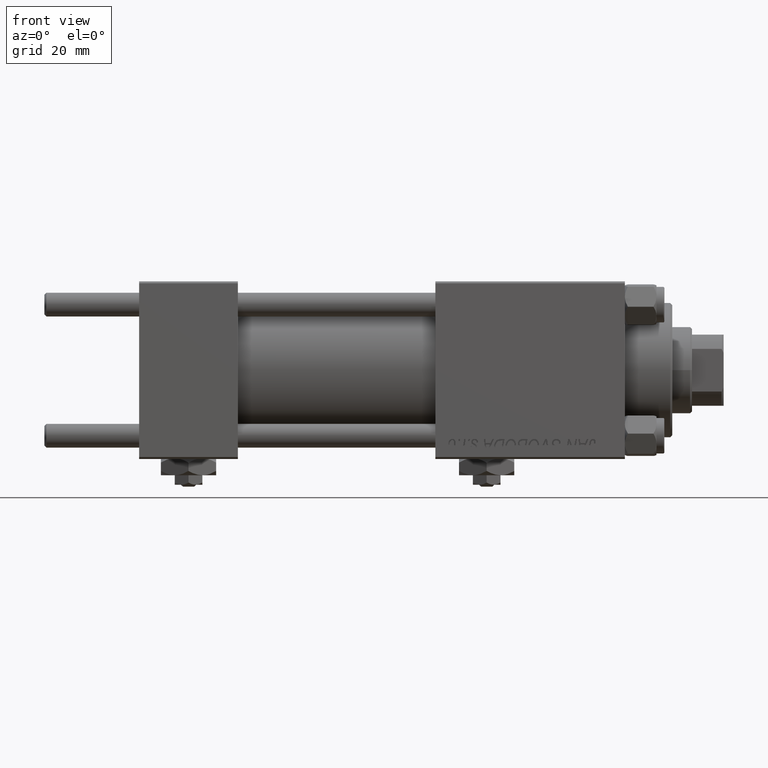
[diagram: clean part render]
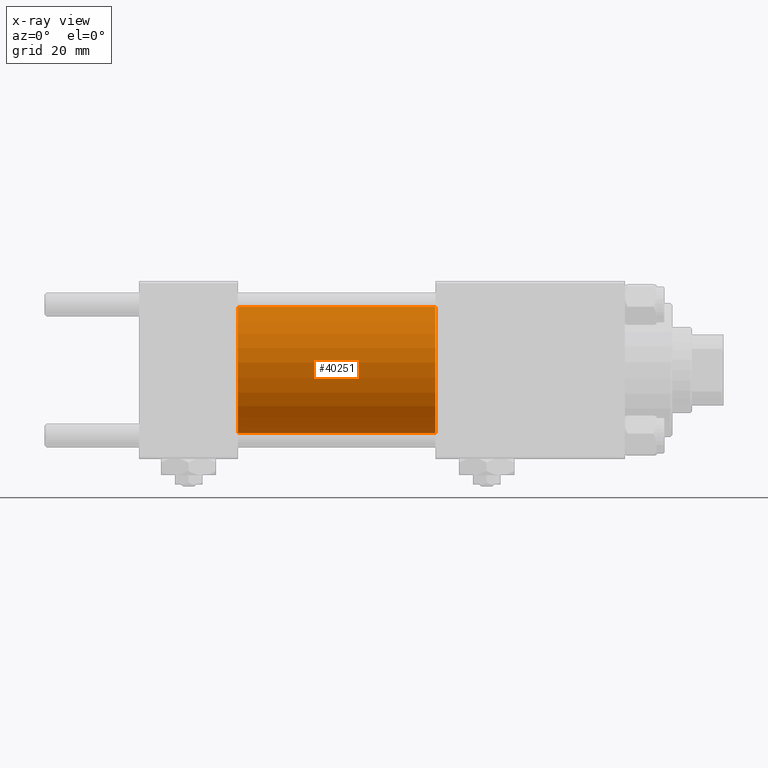
[diagram: x-ray — body ghosted, one internal face saturated and labeled with its STEP entity id]
A machine part, front view, then the same camera in x-ray: the body is ghosted and one INTERNAL B-rep face — a face not visible from any outside direction — is saturated and labeled: STEP entity #40251.
In plain terms, the highlighted cylindrical surface (partial cylindrical patch) has radius 16 mm, axis along (-1, -0, -0).
Its self-contained STEP definition (entity closure, byte-faithful):
#724 = DIRECTION ( 'NONE',  ( -1.000000000000000000, -0.000000000000000000, -0.000000000000000000 ) ) ;
#1792 = CARTESIAN_POINT ( 'NONE',  ( 75.00000000000001421, 1.959434878635765131E-15, -16.00000000000000000 ) ) ;
#5922 = LINE ( 'NONE', #50122, #37141 ) ;
#6794 = DIRECTION ( 'NONE',  ( 1.000000000000000000, 0.000000000000000000, 0.000000000000000000 ) ) ;
#7423 = VERTEX_POINT ( 'NONE', #44077 ) ;
#8442 = AXIS2_PLACEMENT_3D ( 'NONE', #34723, #6794, #14688 ) ;
#9859 = DIRECTION ( 'NONE',  ( -1.000000000000000000, -0.000000000000000000, -0.000000000000000000 ) ) ;
#12149 = EDGE_CURVE ( 'NONE', #7423, #23311, #38300, .T. ) ;
#14688 = DIRECTION ( 'NONE',  ( 0.000000000000000000, 0.000000000000000000, -1.000000000000000000 ) ) ;
#15987 = CARTESIAN_POINT ( 'NONE',  ( 75.00000000000001421, 0.000000000000000000, 16.00000000000000000 ) ) ;
#17035 = ORIENTED_EDGE ( 'NONE', *, *, #40841, .F. ) ;
#18567 = CARTESIAN_POINT ( 'NONE',  ( 75.00000000000001421, 0.000000000000000000, 0.000000000000000000 ) ) ;
#19081 = DIRECTION ( 'NONE',  ( 0.000000000000000000, 0.000000000000000000, 1.000000000000000000 ) ) ;
#22489 = DIRECTION ( 'NONE',  ( 1.000000000000000000, 0.000000000000000000, 0.000000000000000000 ) ) ;
#22509 = ORIENTED_EDGE ( 'NONE', *, *, #12149, .T. ) ;
#23311 = VERTEX_POINT ( 'NONE', #1792 ) ;
#23995 = DIRECTION ( 'NONE',  ( -1.000000000000000000, -0.000000000000000000, -0.000000000000000000 ) ) ;
#25370 = VERTEX_POINT ( 'NONE', #25688 ) ;
#25688 = CARTESIAN_POINT ( 'NONE',  ( 25.00000000000000000, 0.000000000000000000, 16.00000000000000000 ) ) ;
#26354 = ORIENTED_EDGE ( 'NONE', *, *, #33665, .F. ) ;
#29017 = EDGE_CURVE ( 'NONE', #23311, #45865, #5922, .T. ) ;
#30243 = ORIENTED_EDGE ( 'NONE', *, *, #29017, .T. ) ;
#32713 = CYLINDRICAL_SURFACE ( 'NONE', #34435, 16.00000000000000000 ) ;
#33103 = LINE ( 'NONE', #15987, #44725 ) ;
#33533 = EDGE_LOOP ( 'NONE', ( #22509, #30243, #17035, #26354 ) ) ;
#33665 = EDGE_CURVE ( 'NONE', #7423, #25370, #33103, .T. ) ;
#34435 = AXIS2_PLACEMENT_3D ( 'NONE', #40331, #23995, #19081 ) ;
#34723 = CARTESIAN_POINT ( 'NONE',  ( 25.00000000000000000, 0.000000000000000000, 0.000000000000000000 ) ) ;
#37141 = VECTOR ( 'NONE', #9859, 1000.000000000000000 ) ;
#38300 = CIRCLE ( 'NONE', #45038, 16.00000000000000000 ) ;
#38462 = CARTESIAN_POINT ( 'NONE',  ( 25.00000000000000000, 1.959434878635765131E-15, -16.00000000000000000 ) ) ;
#40251 = ADVANCED_FACE ( 'NONE', ( #48501 ), #32713, .F. ) ;
#40331 = CARTESIAN_POINT ( 'NONE',  ( 75.00000000000001421, 0.000000000000000000, 0.000000000000000000 ) ) ;
#40841 = EDGE_CURVE ( 'NONE', #25370, #45865, #48755, .T. ) ;
#44077 = CARTESIAN_POINT ( 'NONE',  ( 75.00000000000001421, 0.000000000000000000, 16.00000000000000000 ) ) ;
#44725 = VECTOR ( 'NONE', #724, 1000.000000000000000 ) ;
#45038 = AXIS2_PLACEMENT_3D ( 'NONE', #18567, #22489, #46995 ) ;
#45865 = VERTEX_POINT ( 'NONE', #38462 ) ;
#46995 = DIRECTION ( 'NONE',  ( 0.000000000000000000, 0.000000000000000000, -1.000000000000000000 ) ) ;
#48501 = FACE_OUTER_BOUND ( 'NONE', #33533, .T. ) ;
#48755 = CIRCLE ( 'NONE', #8442, 16.00000000000000000 ) ;
#50122 = CARTESIAN_POINT ( 'NONE',  ( 75.00000000000001421, 1.959434878635765131E-15, -16.00000000000000000 ) ) ;